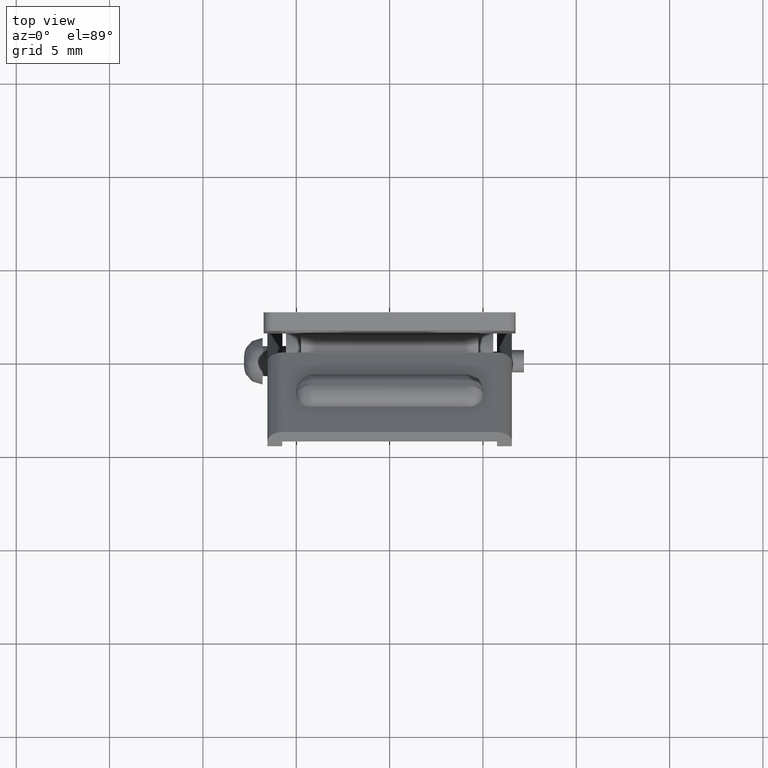
[diagram: clean part render]
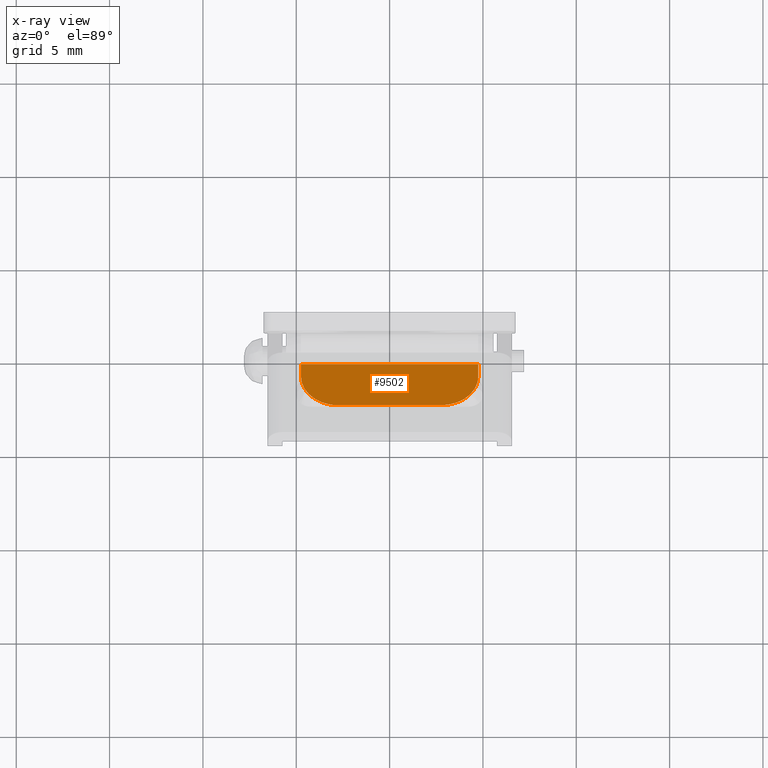
[diagram: x-ray — body ghosted, one internal face saturated and labeled with its STEP entity id]
A machine part, top view, then the same camera in x-ray: the body is ghosted and one INTERNAL B-rep face — a face not visible from any outside direction — is saturated and labeled: STEP entity #9502.
In plain terms, the highlighted face is a freeform B-spline surface patch.
Its self-contained STEP definition (entity closure, byte-faithful):
#8590=CARTESIAN_POINT('',(2.749991999999925,-2.702561000000000,19.335228000000001));
#8591=VERTEX_POINT('',#8590);
#8592=CARTESIAN_POINT('',(-2.749991999999925,-2.702561000000000,19.335228000000001));
#8593=VERTEX_POINT('',#8592);
#8594=CARTESIAN_POINT('',(2.749991999999925,-2.702561000000000,19.335228000000001));
#8595=CARTESIAN_POINT('',(-2.749991999999925,-2.702561000000000,19.335228000000001));
#8596=QUASI_UNIFORM_CURVE('',1,(#8594,#8595),.UNSPECIFIED.,.F.,.U.);
#8597=EDGE_CURVE('',#8591,#8593,#8596,.T.);
#9256=CARTESIAN_POINT('',(4.749991999999930,-1.139770102337170,18.085772567496100));
#9257=VERTEX_POINT('',#9256);
#9263=CARTESIAN_POINT('',(2.749991999999925,-2.702560999999973,19.335227999999990));
#9264=CARTESIAN_POINT('',(4.749991999999925,-2.702560999999973,19.335227999999994));
#9265=CARTESIAN_POINT('',(4.749991999999925,-1.139770102337170,18.085772567496100));
#9273=(BOUNDED_CURVE()B_SPLINE_CURVE(2,(#9263,#9264,#9265),.UNSPECIFIED.,.F.,.U.)CURVE()GEOMETRIC_REPRESENTATION_ITEM()QUASI_UNIFORM_CURVE()RATIONAL_B_SPLINE_CURVE((1.0,0.707106781186547,1.0))REPRESENTATION_ITEM(''));
#9274=EDGE_CURVE('',#8591,#9257,#9273,.T.);
#9296=CARTESIAN_POINT('',(-4.749991999999930,-1.139770102337172,18.085772567496100));
#9297=VERTEX_POINT('',#9296);
#9298=CARTESIAN_POINT('',(-4.749991999999930,-1.139770102337172,18.085772567496100));
#9299=CARTESIAN_POINT('',(-4.749992000000000,-2.702560999999975,19.335227999999994));
#9300=CARTESIAN_POINT('',(-2.749992000000001,-2.702560999999975,19.335227999999990));
#9308=(BOUNDED_CURVE()B_SPLINE_CURVE(2,(#9298,#9299,#9300),.UNSPECIFIED.,.F.,.U.)CURVE()GEOMETRIC_REPRESENTATION_ITEM()QUASI_UNIFORM_CURVE()RATIONAL_B_SPLINE_CURVE((1.0,0.707106781186548,1.0))REPRESENTATION_ITEM(''));
#9309=EDGE_CURVE('',#9297,#8593,#9308,.T.);
#9336=CARTESIAN_POINT('',(-4.749991999999930,-0.470925098889737,17.551029228313450));
#9337=VERTEX_POINT('',#9336);
#9338=CARTESIAN_POINT('',(-4.749991999999930,-0.470925098889737,17.551029228313450));
#9339=CARTESIAN_POINT('',(-4.749991999999930,-1.139770102337172,18.085772567496100));
#9340=QUASI_UNIFORM_CURVE('',1,(#9338,#9339),.UNSPECIFIED.,.F.,.U.);
#9341=EDGE_CURVE('',#9337,#9297,#9340,.T.);
#9392=CARTESIAN_POINT('',(4.749991999999930,-0.470925098889736,17.551029228313450));
#9393=VERTEX_POINT('',#9392);
#9410=CARTESIAN_POINT('',(4.749991999999930,-1.139770102337170,18.085772567496100));
#9411=CARTESIAN_POINT('',(4.749991999999930,-0.470925098889736,17.551029228313450));
#9412=QUASI_UNIFORM_CURVE('',1,(#9410,#9411),.UNSPECIFIED.,.F.,.U.);
#9413=EDGE_CURVE('',#9257,#9393,#9412,.T.);
#9485=CARTESIAN_POINT('',(-5.224516182387111,-0.359454889954630,17.461908503125819));
#9486=CARTESIAN_POINT('',(-5.224516182387111,-2.814031268792255,19.424348773043558));
#9487=CARTESIAN_POINT('',(5.224516437196537,-0.359454889954630,17.461908503125819));
#9488=CARTESIAN_POINT('',(5.224516437196537,-2.814031268792255,19.424348773043558));
#9489=B_SPLINE_SURFACE_WITH_KNOTS('',1,1,((#9485,#9487),(#9486,#9488)),.UNSPECIFIED.,.F.,.F.,.U.,(2,2),(2,2),(0.0,3.142628996961374),(0.0,10.449032619583649),.UNSPECIFIED.);
#9490=ORIENTED_EDGE('',*,*,#9341,.T.);
#9491=ORIENTED_EDGE('',*,*,#9309,.T.);
#9492=ORIENTED_EDGE('',*,*,#8597,.F.);
#9493=ORIENTED_EDGE('',*,*,#9274,.T.);
#9494=ORIENTED_EDGE('',*,*,#9413,.T.);
#9495=CARTESIAN_POINT('',(4.749991999999930,-0.470925098889736,17.551029228313450));
#9496=CARTESIAN_POINT('',(-4.749991999999930,-0.470925098889737,17.551029228313450));
#9497=QUASI_UNIFORM_CURVE('',1,(#9495,#9496),.UNSPECIFIED.,.F.,.U.);
#9498=EDGE_CURVE('',#9393,#9337,#9497,.T.);
#9499=ORIENTED_EDGE('',*,*,#9498,.T.);
#9500=EDGE_LOOP('',(#9490,#9491,#9492,#9493,#9494,#9499));
#9501=FACE_OUTER_BOUND('',#9500,.T.);
#9502=ADVANCED_FACE('',(#9501),#9489,.T.);